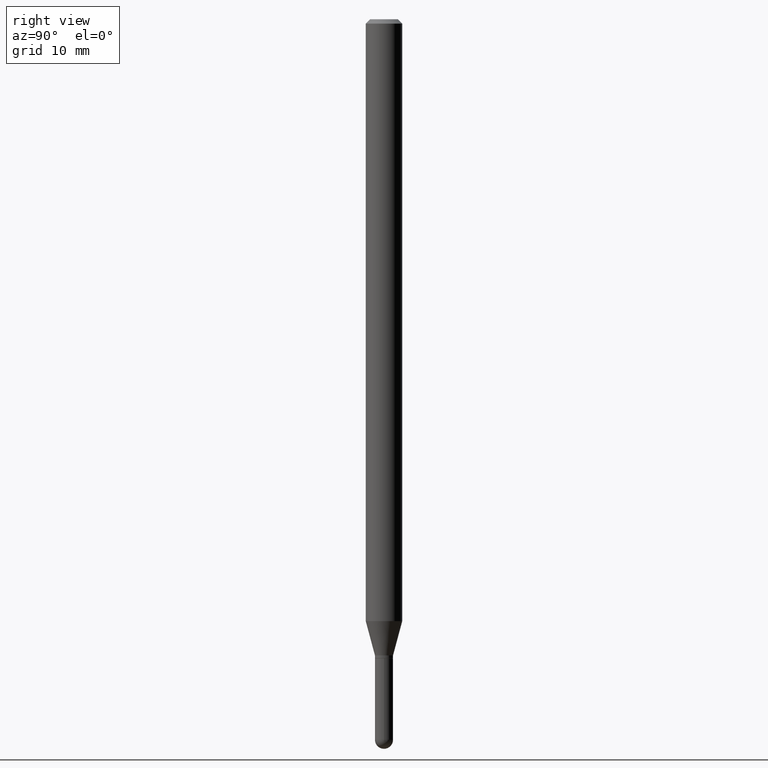
[diagram: clean part render]
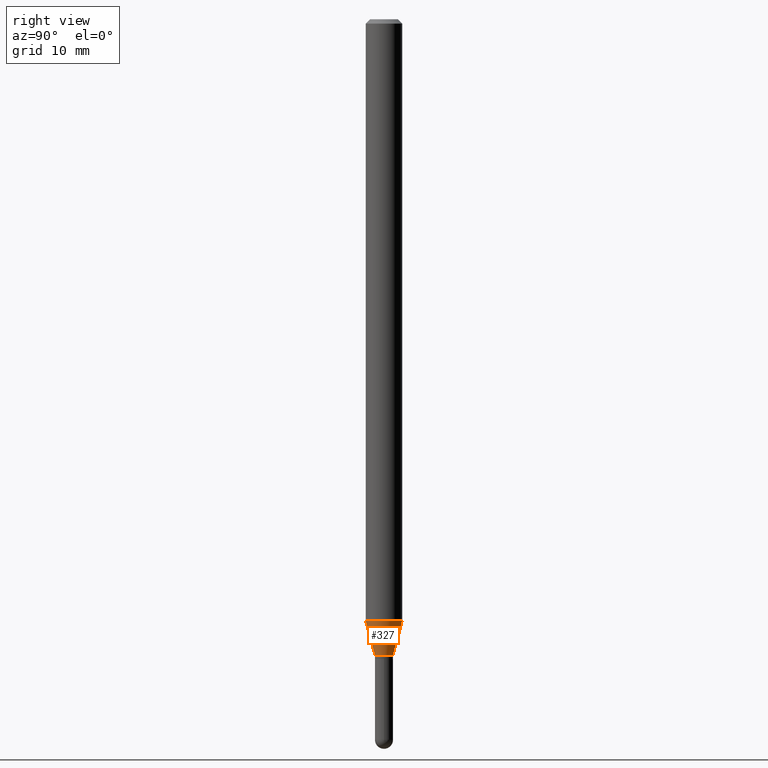
[diagram: same view with one face highlighted and labeled with its STEP entity id]
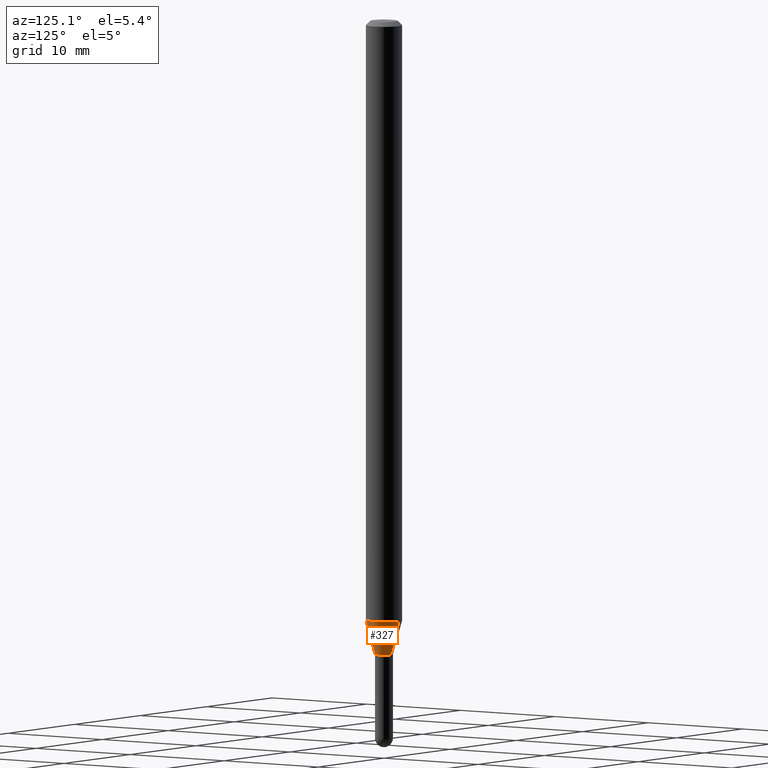
[diagram: same view with one face highlighted and labeled with its STEP entity id]
A machine part, right view. The second image highlights one B-rep face of the part: STEP entity #327.
A second angle (auxiliary view) of the same face is appended — the face is thin or edge-on in the first view.
In plain terms, the highlighted conical surface has half-angle 15 deg.
Its self-contained STEP definition (entity closure, byte-faithful):
#1 = CARTESIAN_POINT ( 'NONE',  ( 2.202682480856837865E-16, 0.03099999999999231148, -2.180000000000000160 ) ) ;
#28 = VERTEX_POINT ( 'NONE', #147 ) ;
#48 = CIRCLE ( 'NONE', #505, 0.06250000000000000000 ) ;
#53 = ORIENTED_EDGE ( 'NONE', *, *, #365, .F. ) ;
#90 = CARTESIAN_POINT ( 'NONE',  ( 5.043592810545655603E-29, -7.201030668786385681E-15, -2.062440399561580762 ) ) ;
#104 = DIRECTION ( 'NONE',  ( -6.982962677686265922E-15, -1.000000000000000000, 0.000000000000000000 ) ) ;
#119 = LINE ( 'NONE', #1, #451 ) ;
#135 = CARTESIAN_POINT ( 'NONE',  ( 5.331078817757245343E-29, -7.611491154503834045E-15, -2.180000000000000160 ) ) ;
#147 = CARTESIAN_POINT ( 'NONE',  ( 4.440892098501128074E-16, 0.06249999999999277661, -2.062440399561580762 ) ) ;
#156 = EDGE_CURVE ( 'NONE', #506, #28, #119, .T. ) ;
#179 = CARTESIAN_POINT ( 'NONE',  ( 5.331078817757245343E-29, -7.611491154503834045E-15, -2.180000000000000160 ) ) ;
#208 = CONICAL_SURFACE ( 'NONE', #477, 0.03099999999999992345, 0.2617993877991500740 ) ;
#218 = EDGE_CURVE ( 'NONE', #491, #303, #475, .T. ) ;
#222 = VECTOR ( 'NONE', #366, 39.37007874015748854 ) ;
#232 = DIRECTION ( 'NONE',  ( 1.839019923739598738E-15, 0.2588190451025247363, 0.9659258262890673130 ) ) ;
#236 = ORIENTED_EDGE ( 'NONE', *, *, #218, .F. ) ;
#250 = DIRECTION ( 'NONE',  ( -2.445448998971213131E-29, 3.491509703900840523E-15, 1.000000000000000000 ) ) ;
#257 = AXIS2_PLACEMENT_3D ( 'NONE', #179, #300, #104 ) ;
#260 = CARTESIAN_POINT ( 'NONE',  ( 3.321787289678984079E-16, 0.03099999999999231148, -2.180000000000000160 ) ) ;
#269 = CARTESIAN_POINT ( 'NONE',  ( -2.164718430082203928E-16, -0.03100000000000753195, -2.180000000000000160 ) ) ;
#290 = CIRCLE ( 'NONE', #257, 0.03099999999999992345 ) ;
#294 = DIRECTION ( 'NONE',  ( -6.982962677686265922E-15, -1.000000000000000000, 4.370956789862821150E-15 ) ) ;
#300 = DIRECTION ( 'NONE',  ( -2.445448998971213131E-29, 3.491509703900840523E-15, 1.000000000000000000 ) ) ;
#301 = CARTESIAN_POINT ( 'NONE',  ( -2.164718430082203928E-16, -0.03100000000000753195, -2.180000000000000160 ) ) ;
#303 = VERTEX_POINT ( 'NONE', #458 ) ;
#320 = DIRECTION ( 'NONE',  ( -2.445448998971213131E-29, 3.491509703900840523E-15, 1.000000000000000000 ) ) ;
#327 = ADVANCED_FACE ( 'NONE', ( #493 ), #208, .T. ) ;
#365 = EDGE_CURVE ( 'NONE', #303, #28, #48, .T. ) ;
#366 = DIRECTION ( 'NONE',  ( -1.807323732225328562E-15, -0.2588190451025179639, 0.9659258262890690894 ) ) ;
#381 = ORIENTED_EDGE ( 'NONE', *, *, #478, .T. ) ;
#451 = VECTOR ( 'NONE', #232, 39.37007874015748854 ) ;
#458 = CARTESIAN_POINT ( 'NONE',  ( -4.364351673553413795E-16, -0.06250000000000724421, -2.062440399561580318 ) ) ;
#475 = LINE ( 'NONE', #269, #222 ) ;
#476 = EDGE_LOOP ( 'NONE', ( #381, #479, #53, #236 ) ) ;
#477 = AXIS2_PLACEMENT_3D ( 'NONE', #135, #250, #492 ) ;
#478 = EDGE_CURVE ( 'NONE', #491, #506, #290, .T. ) ;
#479 = ORIENTED_EDGE ( 'NONE', *, *, #156, .T. ) ;
#491 = VERTEX_POINT ( 'NONE', #301 ) ;
#492 = DIRECTION ( 'NONE',  ( -6.982962677686265922E-15, -1.000000000000000000, 0.000000000000000000 ) ) ;
#493 = FACE_OUTER_BOUND ( 'NONE', #476, .T. ) ;
#505 = AXIS2_PLACEMENT_3D ( 'NONE', #90, #320, #294 ) ;
#506 = VERTEX_POINT ( 'NONE', #260 ) ;